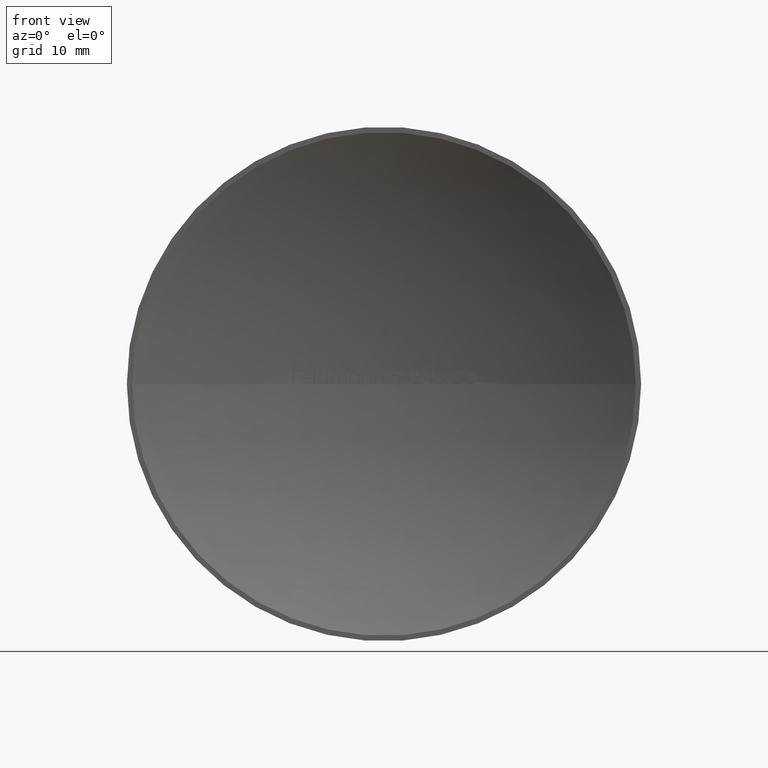
[diagram: clean part render]
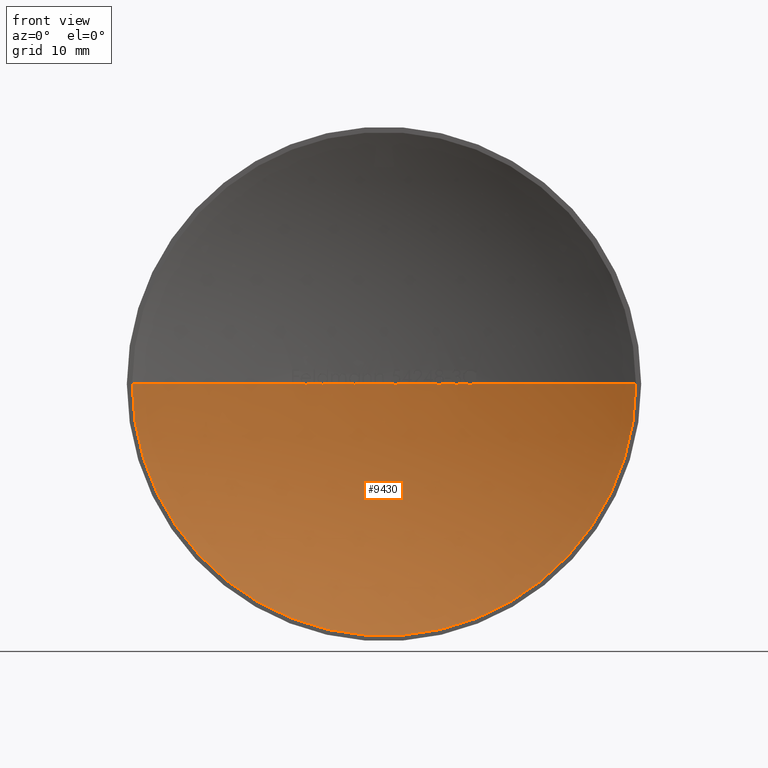
[diagram: same view with one face highlighted and labeled with its STEP entity id]
A machine part, front view. The second image highlights one B-rep face of the part: STEP entity #9430.
In plain terms, the highlighted spherical surface has radius 49.6019 mm.
Its self-contained STEP definition (entity closure, byte-faithful):
#43 = EDGE_LOOP ( 'NONE', ( #4882, #6689, #6753, #7775, #7887, #6994, #8675, #4696, #6246, #4340, #1738, #5373, #6885, #12651, #10324, #11909, #5054, #1391, #1188, #3706, #5491, #8390, #7410, #6536, #7382, #3102, #10715, #9566, #6255, #7719, #9083, #4099, #11258, #6299, #618, #1181, #11798, #9360, #1012, #5789, #11662, #6087, #9410, #5220, #8967, #204, #7799, #6098, #4261, #10463, #3948, #12587 ) ) ;
#68 = DIRECTION ( 'NONE',  ( -1.000000000000000000, 0.0000000000000000000, 1.224646799147353200E-016 ) ) ;
#93 = CARTESIAN_POINT ( 'NONE',  ( 6.724470571981925100, 5.542072289469087000, -0.02989199848110151900 ) ) ;
#204 = ORIENTED_EDGE ( 'NONE', *, *, #2615, .F. ) ;
#243 = EDGE_CURVE ( 'NONE', #12696, #9621, #11123, .T. ) ;
#246 = DIRECTION ( 'NONE',  ( 0.0000000000000000000, 0.0000000000000000000, -1.000000000000000000 ) ) ;
#251 = CIRCLE ( 'NONE', #7860, 49.60187499999996400 ) ;
#258 = CARTESIAN_POINT ( 'NONE',  ( -2.679013999319839200, 5.927605095194576500, -0.005824515598051869900 ) ) ;
#276 = CIRCLE ( 'NONE', #2003, 49.60187499999996400 ) ;
#308 = CARTESIAN_POINT ( 'NONE',  ( -2.736586320863180400, 5.924451665824027400, -0.01425418016871873000 ) ) ;
#336 = AXIS2_PLACEMENT_3D ( 'NONE', #4045, #12011, #3965 ) ;
#392 = CARTESIAN_POINT ( 'NONE',  ( 5.239364746979404700, 5.722505019383935300, -0.03047577454106548100 ) ) ;
#404 = EDGE_CURVE ( 'NONE', #5077, #698, #10890, .T. ) ;
#440 = CARTESIAN_POINT ( 'NONE',  ( 1.463868500272714700E-014, -43.60187499999997800, 0.0000000000000000000 ) ) ;
#452 = CARTESIAN_POINT ( 'NONE',  ( -8.522636217948703000, 5.262331485034955000, 4.035791619699531300E-015 ) ) ;
#454 = DIRECTION ( 'NONE',  ( 1.000000000000000000, 0.0000000000000000000, 0.0000000000000000000 ) ) ;
#485 = AXIS2_PLACEMENT_3D ( 'NONE', #4767, #9821, #3854 ) ;
#493 = VERTEX_POINT ( 'NONE', #7015 ) ;
#496 = CARTESIAN_POINT ( 'NONE',  ( 4.333400106837621600, 5.810346636247881900, -2.653442285131515300E-016 ) ) ;
#517 = VERTEX_POINT ( 'NONE', #12060 ) ;
#534 = CARTESIAN_POINT ( 'NONE',  ( 23.64788574058999200, -6.746207689312076300E-015, -2.896030757881546500E-015 ) ) ;
#557 = CARTESIAN_POINT ( 'NONE',  ( -4.859174679487162000, 5.761415256524173000, 4.030173027202267700E-015 ) ) ;
#588 = CARTESIAN_POINT ( 'NONE',  ( -7.439733434635988900, 5.438904936440341200, -0.01015934223820221300 ) ) ;
#597 = DIRECTION ( 'NONE',  ( -1.224646799147353200E-016, 8.963609366158087900E-031, -1.000000000000000000 ) ) ;
#618 = ORIENTED_EDGE ( 'NONE', *, *, #7739, .F. ) ;
#681 = CARTESIAN_POINT ( 'NONE',  ( 1.463868500272714700E-014, -43.60187499999997800, 0.0000000000000000000 ) ) ;
#698 = VERTEX_POINT ( 'NONE', #12463 ) ;
#705 = CARTESIAN_POINT ( 'NONE',  ( 1.463868500272714700E-014, -43.60187499999997800, 0.0000000000000000000 ) ) ;
#721 = CARTESIAN_POINT ( 'NONE',  ( -4.316439636752117600, 5.811831118625617500, 0.0000000000000000000 ) ) ;
#740 = DIRECTION ( 'NONE',  ( 0.0000000000000000000, -0.0000000000000000000, 1.000000000000000000 ) ) ;
#758 = CARTESIAN_POINT ( 'NONE',  ( 7.890751008122761000, 5.368340378807928900, 8.488721013175519200E-006 ) ) ;
#789 = EDGE_CURVE ( 'NONE', #862, #2011, #10863, .T. ) ;
#803 = DIRECTION ( 'NONE',  ( 0.0000000000000000000, -0.0000000000000000000, 1.000000000000000000 ) ) ;
#828 = VERTEX_POINT ( 'NONE', #2859 ) ;
#862 = VERTEX_POINT ( 'NONE', #721 ) ;
#870 = DIRECTION ( 'NONE',  ( 1.000000000000000000, 0.0000000000000000000, 0.0000000000000000000 ) ) ;
#879 = AXIS2_PLACEMENT_3D ( 'NONE', #8531, #10613, #2759 ) ;
#901 = CARTESIAN_POINT ( 'NONE',  ( 8.047439446970134500, 5.342841764016999800, -0.03082473936812907300 ) ) ;
#903 = EDGE_CURVE ( 'NONE', #2683, #3437, #5432, .T. ) ;
#904 = CARTESIAN_POINT ( 'NONE',  ( 1.463868500272714700E-014, -43.60187499999997800, 0.0000000000000000000 ) ) ;
#924 = CIRCLE ( 'NONE', #12284, 49.60187499999996400 ) ;
#962 = AXIS2_PLACEMENT_3D ( 'NONE', #7790, #803, #1849 ) ;
#969 = EDGE_CURVE ( 'NONE', #9708, #8846, #9193, .T. ) ;
#1012 = ORIENTED_EDGE ( 'NONE', *, *, #5197, .T. ) ;
#1066 = CARTESIAN_POINT ( 'NONE',  ( 6.757305919028807400, 5.537569642268946900, -0.03308704159077371900 ) ) ;
#1069 = CARTESIAN_POINT ( 'NONE',  ( 6.979099033457370800, 5.506557747456005500, 8.694128491201976900E-007 ) ) ;
#1106 = CARTESIAN_POINT ( 'NONE',  ( 6.638200815725295600, 5.553807632864066000, -0.01192559025062179600 ) ) ;
#1136 = CIRCLE ( 'NONE', #5849, 49.60187499999996400 ) ;
#1138 = CARTESIAN_POINT ( 'NONE',  ( 8.173033871506362400, 5.322012882657517700, -0.03335405446022068200 ) ) ;
#1151 = CARTESIAN_POINT ( 'NONE',  ( 1.463868500272714700E-014, -43.60187499999997800, 0.0000000000000000000 ) ) ;
#1176 = DIRECTION ( 'NONE',  ( 0.0000000000000000000, -0.0000000000000000000, 1.000000000000000000 ) ) ;
#1181 = ORIENTED_EDGE ( 'NONE', *, *, #8282, .T. ) ;
#1185 = CARTESIAN_POINT ( 'NONE',  ( -2.656440696895848500, 5.928815642323424000, -2.249331870367865100E-006 ) ) ;
#1188 = ORIENTED_EDGE ( 'NONE', *, *, #789, .T. ) ;
#1223 = DIRECTION ( 'NONE',  ( 1.000000000000000000, 0.0000000000000000000, 0.0000000000000000000 ) ) ;
#1224 = DIRECTION ( 'NONE',  ( 1.000000000000000000, 0.0000000000000000000, 0.0000000000000000000 ) ) ;
#1232 = CARTESIAN_POINT ( 'NONE',  ( -2.701725019257574800, 5.926370810177097300, -0.01009319187048079000 ) ) ;
#1233 = CARTESIAN_POINT ( 'NONE',  ( 1.014728200627871300, 5.989612439659318900, -0.03003821068411627300 ) ) ;
#1306 = B_SPLINE_CURVE_WITH_KNOTS ( 'NONE', 3,
 ( #11323, #5485, #4391, #10468, #5351, #8393, #7401, #4516 ),
 .UNSPECIFIED., .F., .F.,
 ( 4, 2, 2, 4 ),
 ( 0.6911621596050899800, 0.8455810798025421600, 0.9227905399012710200, 1.000000000000000000 ),
 .UNSPECIFIED. ) ;
#1310 = EDGE_CURVE ( 'NONE', #8095, #3511, #6984, .T. ) ;
#1359 = B_SPLINE_CURVE_WITH_KNOTS ( 'NONE', 3,
 ( #3242, #6174, #6216, #1233, #5235, #7245, #10233, #2459 ),
 .UNSPECIFIED., .F., .F.,
 ( 4, 2, 2, 4 ),
 ( 0.0000000000000000000, 0.07081696981279699000, 0.1416339396255939800, 0.2832678792511879600 ),
 .UNSPECIFIED. ) ;
#1379 = CIRCLE ( 'NONE', #336, 49.60187499999996400 ) ;
#1385 = CARTESIAN_POINT ( 'NONE',  ( 1.463868500272714700E-014, -43.60187499999997800, 0.0000000000000000000 ) ) ;
#1391 = ORIENTED_EDGE ( 'NONE', *, *, #4037, .T. ) ;
#1403 = AXIS2_PLACEMENT_3D ( 'NONE', #6642, #7586, #7633 ) ;
#1414 = AXIS2_PLACEMENT_3D ( 'NONE', #4738, #10641, #10558 ) ;
#1454 = CIRCLE ( 'NONE', #1414, 49.60187499999996400 ) ;
#1485 = CARTESIAN_POINT ( 'NONE',  ( -7.480813466297853200, 5.432637344131030100, -7.150046335276204300E-007 ) ) ;
#1505 = DIRECTION ( 'NONE',  ( 0.0000000000000000000, 0.0000000000000000000, 1.000000000000000000 ) ) ;
#1538 = CARTESIAN_POINT ( 'NONE',  ( -0.8904246794871655300, 5.992007157034080900, 0.0000000000000000000 ) ) ;
#1555 = EDGE_CURVE ( 'NONE', #12228, #12696, #1306, .T. ) ;
#1580 = EDGE_CURVE ( 'NONE', #7989, #8953, #9747, .T. ) ;
#1660 = VERTEX_POINT ( 'NONE', #758 ) ;
#1675 = VERTEX_POINT ( 'NONE', #8766 ) ;
#1738 = ORIENTED_EDGE ( 'NONE', *, *, #7598, .T. ) ;
#1771 = AXIS2_PLACEMENT_3D ( 'NONE', #7412, #3412, #8444 ) ;
#1810 = AXIS2_PLACEMENT_3D ( 'NONE', #4264, #10297, #6276 ) ;
#1836 = EDGE_CURVE ( 'NONE', #3693, #3677, #12895, .T. ) ;
#1849 = DIRECTION ( 'NONE',  ( 1.000000000000000000, 0.0000000000000000000, 0.0000000000000000000 ) ) ;
#1864 = CIRCLE ( 'NONE', #5110, 49.60187499999996400 ) ;
#1893 = CARTESIAN_POINT ( 'NONE',  ( 6.609443779147066600, 5.557673972055128300, -1.084902430274066100E-005 ) ) ;
#1937 = DIRECTION ( 'NONE',  ( 0.0000000000000000000, 0.0000000000000000000, 1.000000000000000000 ) ) ;
#1994 = CARTESIAN_POINT ( 'NONE',  ( 1.231760208460105100, 5.984712228362619500, -0.01179774255529475500 ) ) ;
#2003 = AXIS2_PLACEMENT_3D ( 'NONE', #6562, #740, #9611 ) ;
#2011 = VERTEX_POINT ( 'NONE', #557 ) ;
#2036 = DIRECTION ( 'NONE',  ( 0.0000000000000000000, -0.0000000000000000000, 1.000000000000000000 ) ) ;
#2046 = EDGE_CURVE ( 'NONE', #11733, #10739, #11665, .T. ) ;
#2051 = EDGE_CURVE ( 'NONE', #8095, #12629, #9444, .T. ) ;
#2079 = CARTESIAN_POINT ( 'NONE',  ( -5.624523918050308600, 5.680076294199516000, -2.105333533375243200E-006 ) ) ;
#2142 = FACE_OUTER_BOUND ( 'NONE', #43, .T. ) ;
#2182 = AXIS2_PLACEMENT_3D ( 'NONE', #1385, #4256, #9279 ) ;
#2192 = CARTESIAN_POINT ( 'NONE',  ( 8.133605435363266500, 5.328578865739591400, -0.03392094017094016800 ) ) ;
#2202 = DIRECTION ( 'NONE',  ( 1.000000000000000000, 0.0000000000000000000, 0.0000000000000000000 ) ) ;
#2206 = CARTESIAN_POINT ( 'NONE',  ( 6.792933276575873000, 5.532643521966100800, -0.03392094017094009200 ) ) ;
#2211 = CARTESIAN_POINT ( 'NONE',  ( -7.280943345265357400, 5.462713117154265800, -0.01445704279385973300 ) ) ;
#2244 = CARTESIAN_POINT ( 'NONE',  ( -2.399906517094001500, 5.941908184420151800, 1.469518917206251000E-016 ) ) ;
#2301 = CARTESIAN_POINT ( 'NONE',  ( -7.222501083491901700, 5.471356722514634900, -0.006265846222220670100 ) ) ;
#2315 = CARTESIAN_POINT ( 'NONE',  ( -1.161792200854684600, 5.986392184865983300, 4.048540845547321900E-015 ) ) ;
#2351 = CARTESIAN_POINT ( 'NONE',  ( -2.843430436441433800, 5.918454559148671900, -0.01563942601961633800 ) ) ;
#2363 = CARTESIAN_POINT ( 'NONE',  ( 1.463868500272714700E-014, -43.60187499999997800, 0.0000000000000000000 ) ) ;
#2400 = VERTEX_POINT ( 'NONE', #496 ) ;
#2429 = CARTESIAN_POINT ( 'NONE',  ( 5.003407304901744900, 5.747014680578828900, -0.01252337214899423000 ) ) ;
#2431 = DIRECTION ( 'NONE',  ( 0.0000000000000000000, -0.0000000000000000000, 1.000000000000000000 ) ) ;
#2459 = CARTESIAN_POINT ( 'NONE',  ( 0.9062174182418493200, 5.991720991167619000, 9.656847801228648600E-006 ) ) ;
#2540 = B_SPLINE_CURVE_WITH_KNOTS ( 'NONE', 3,
 ( #1185, #258, #1232, #308, #8284, #7199, #10094, #8146 ),
 .UNSPECIFIED., .F., .F.,
 ( 4, 2, 2, 4 ),
 ( 0.6915284038964573100, 0.8457642019482302100, 0.9228821009741150500, 1.000000000000000000 ),
 .UNSPECIFIED. ) ;
#2570 = CARTESIAN_POINT ( 'NONE',  ( -7.340968466212588700, 5.453765836056258600, -0.01696047008547008400 ) ) ;
#2615 = EDGE_CURVE ( 'NONE', #5740, #2400, #6512, .T. ) ;
#2683 = VERTEX_POINT ( 'NONE', #8550 ) ;
#2687 = DIRECTION ( 'NONE',  ( 0.0000000000000000000, -0.0000000000000000000, 1.000000000000000000 ) ) ;
#2713 = EDGE_CURVE ( 'NONE', #11099, #3511, #10532, .T. ) ;
#2759 = DIRECTION ( 'NONE',  ( -1.000000000000000000, 0.0000000000000000000, 1.224646799147353200E-016 ) ) ;
#2789 = CARTESIAN_POINT ( 'NONE',  ( -4.977897970085453300, 5.749584302791062900, 0.0000000000000000000 ) ) ;
#2808 = CIRCLE ( 'NONE', #7610, 49.60187499999996400 ) ;
#2859 = CARTESIAN_POINT ( 'NONE',  ( 8.366408603394225100, 5.289322578243374400, -3.990226315477980000E-006 ) ) ;
#2866 = CARTESIAN_POINT ( 'NONE',  ( 1.463868500272714700E-014, -43.60187499999997800, 0.0000000000000000000 ) ) ;
#2919 = CARTESIAN_POINT ( 'NONE',  ( 6.979099033457370800, 5.506557747456005500, 8.694128491201976900E-007 ) ) ;
#2954 = DIRECTION ( 'NONE',  ( 0.0000000000000000000, -0.0000000000000000000, 1.000000000000000000 ) ) ;
#2991 = AXIS2_PLACEMENT_3D ( 'NONE', #11888, #1505, #5620 ) ;
#3091 = CARTESIAN_POINT ( 'NONE',  ( 1.463868500272714700E-014, -43.60187499999997800, 0.0000000000000000000 ) ) ;
#3102 = ORIENTED_EDGE ( 'NONE', *, *, #6494, .T. ) ;
#3130 = CARTESIAN_POINT ( 'NONE',  ( 6.917637434057675200, 5.515258725799571800, -0.02083415864269196100 ) ) ;
#3198 = CIRCLE ( 'NONE', #5237, 49.60187499999996400 ) ;
#3213 = CARTESIAN_POINT ( 'NONE',  ( 6.860591333511716300, 5.523247323587402700, -0.02985447888303161000 ) ) ;
#3242 = CARTESIAN_POINT ( 'NONE',  ( 1.073544754941252500, 5.988369550159050400, -0.03392094017094011300 ) ) ;
#3267 = CARTESIAN_POINT ( 'NONE',  ( -2.928456740261676600, 5.913477493067604000, 2.342369519674697600E-006 ) ) ;
#3310 = CARTESIAN_POINT ( 'NONE',  ( -2.888018540663473300, 5.915869228112190300, -0.01015410058305177500 ) ) ;
#3344 = CIRCLE ( 'NONE', #6096, 49.60187499999996400 ) ;
#3406 = SPHERICAL_SURFACE ( 'NONE', #12861, 49.60187499999996400 ) ;
#3412 = DIRECTION ( 'NONE',  ( 0.0000000000000000000, -0.0000000000000000000, 1.000000000000000000 ) ) ;
#3423 = AXIS2_PLACEMENT_3D ( 'NONE', #681, #6836, #7752 ) ;
#3432 = VERTEX_POINT ( 'NONE', #12616 ) ;
#3437 = VERTEX_POINT ( 'NONE', #4301 ) ;
#3465 = DIRECTION ( 'NONE',  ( 0.0000000000000000000, -0.0000000000000000000, 1.000000000000000000 ) ) ;
#3469 = CARTESIAN_POINT ( 'NONE',  ( 5.171088324652791900, 5.729704119506004100, -0.03392094017094016800 ) ) ;
#3500 = CARTESIAN_POINT ( 'NONE',  ( -5.896502342422787800, 5.648274755274108800, 3.108838088003490800E-007 ) ) ;
#3511 = VERTEX_POINT ( 'NONE', #4766 ) ;
#3530 = DIRECTION ( 'NONE',  ( 1.000000000000000000, 0.0000000000000000000, 0.0000000000000000000 ) ) ;
#3595 = VERTEX_POINT ( 'NONE', #8833 ) ;
#3629 = CARTESIAN_POINT ( 'NONE',  ( -5.856419506571237200, 5.653073824963065000, -0.01006037239967079600 ) ) ;
#3651 = AXIS2_PLACEMENT_3D ( 'NONE', #11900, #10965, #3969 ) ;
#3677 = VERTEX_POINT ( 'NONE', #8997 ) ;
#3690 = EDGE_CURVE ( 'NONE', #11099, #517, #9787, .T. ) ;
#3693 = VERTEX_POINT ( 'NONE', #6069 ) ;
#3706 = ORIENTED_EDGE ( 'NONE', *, *, #5229, .T. ) ;
#3741 = CIRCLE ( 'NONE', #10433, 49.60187499999996400 ) ;
#3744 = CARTESIAN_POINT ( 'NONE',  ( 1.463868500272714700E-014, -43.60187499999997800, 0.0000000000000000000 ) ) ;
#3781 = DIRECTION ( 'NONE',  ( 1.000000000000000000, 0.0000000000000000000, 0.0000000000000000000 ) ) ;
#3812 = CIRCLE ( 'NONE', #2991, 49.60187499999996400 ) ;
#3836 = B_SPLINE_CURVE_WITH_KNOTS ( 'NONE', 3,
 ( #11316, #10250, #5344, #11366, #2429, #8342 ),
 .UNSPECIFIED., .F., .F.,
 ( 4, 2, 4 ),
 ( 0.0000000000000000000, 0.1492345756374781300, 0.2984691512749562700 ),
 .UNSPECIFIED. ) ;
#3854 = DIRECTION ( 'NONE',  ( 1.000000000000000000, 0.0000000000000000000, 0.0000000000000000000 ) ) ;
#3948 = ORIENTED_EDGE ( 'NONE', *, *, #3690, .T. ) ;
#3965 = DIRECTION ( 'NONE',  ( 1.000000000000000000, 0.0000000000000000000, 0.0000000000000000000 ) ) ;
#3969 = DIRECTION ( 'NONE',  ( 1.000000000000000000, 0.0000000000000000000, 0.0000000000000000000 ) ) ;
#3989 = AXIS2_PLACEMENT_3D ( 'NONE', #5226, #1176, #1223 ) ;
#4010 = VERTEX_POINT ( 'NONE', #7269 ) ;
#4037 = EDGE_CURVE ( 'NONE', #493, #862, #3198, .T. ) ;
#4040 = CARTESIAN_POINT ( 'NONE',  ( 6.792933276575873000, 5.532643521966100800, -0.03392094017094009200 ) ) ;
#4045 = CARTESIAN_POINT ( 'NONE',  ( 1.463868500272714700E-014, -43.60187499999997800, 0.0000000000000000000 ) ) ;
#4066 = B_SPLINE_CURVE_WITH_KNOTS ( 'NONE', 3,
 ( #5977, #2301, #8125, #2211, #11234, #10156, #12147, #7265, #5259, #4216 ),
 .UNSPECIFIED., .F., .F.,
 ( 4, 2, 2, 2, 4 ),
 ( 0.7363279762985935900, 0.8681639881492946300, 0.9340819940746454300, 0.9670409970373227100, 1.000000000000000000 ),
 .UNSPECIFIED. ) ;
#4067 = VERTEX_POINT ( 'NONE', #11849 ) ;
#4099 = ORIENTED_EDGE ( 'NONE', *, *, #5566, .T. ) ;
#4159 = DIRECTION ( 'NONE',  ( -1.000000000000000000, 0.0000000000000000000, 1.224646799147353200E-016 ) ) ;
#4216 = CARTESIAN_POINT ( 'NONE',  ( -7.340968466212588700, 5.453765836056258600, -0.01696047008547008400 ) ) ;
#4239 = DIRECTION ( 'NONE',  ( 0.0000000000000000000, 0.0000000000000000000, 1.000000000000000000 ) ) ;
#4256 = DIRECTION ( 'NONE',  ( 0.0000000000000000000, -0.0000000000000000000, 1.000000000000000000 ) ) ;
#4261 = ORIENTED_EDGE ( 'NONE', *, *, #1310, .T. ) ;
#4264 = CARTESIAN_POINT ( 'NONE',  ( -4.391605500818018500E-014, 1.665334536937734800E-013, 0.0000000000000000000 ) ) ;
#4285 = CARTESIAN_POINT ( 'NONE',  ( 1.463868500272714700E-014, -43.60187499999997800, 0.0000000000000000000 ) ) ;
#4301 = CARTESIAN_POINT ( 'NONE',  ( -7.198465829507335400, 5.474881983893638400, -3.500369108205801200E-006 ) ) ;
#4307 = DIRECTION ( 'NONE',  ( 1.000000000000000000, 0.0000000000000000000, 0.0000000000000000000 ) ) ;
#4340 = ORIENTED_EDGE ( 'NONE', *, *, #9033, .T. ) ;
#4371 = CARTESIAN_POINT ( 'NONE',  ( 1.463868500272714700E-014, -43.60187499999997800, 0.0000000000000000000 ) ) ;
#4391 = CARTESIAN_POINT ( 'NONE',  ( -5.669928983094124900, 5.674877720789437400, -0.01010834121034870500 ) ) ;
#4413 = DIRECTION ( 'NONE',  ( 0.0000000000000000000, -0.0000000000000000000, 1.000000000000000000 ) ) ;
#4423 = CARTESIAN_POINT ( 'NONE',  ( -1.280515491452973700, 5.983468435250827600, 7.840895989334703200E-017 ) ) ;
#4425 = EDGE_CURVE ( 'NONE', #5569, #2400, #7865, .T. ) ;
#4454 = DIRECTION ( 'NONE',  ( 1.000000000000000000, 0.0000000000000000000, 0.0000000000000000000 ) ) ;
#4462 = B_SPLINE_CURVE_WITH_KNOTS ( 'NONE', 3,
 ( #8325, #11435, #9479, #5423, #392, #12392, #11299, #5467, #7423, #12434 ),
 .UNSPECIFIED., .F., .F.,
 ( 4, 2, 2, 2, 4 ),
 ( 0.4911366497956574700, 0.7455683248978286500, 0.8727841624489143200, 0.9363920812244570500, 1.000000000000000000 ),
 .UNSPECIFIED. ) ;
#4470 = CARTESIAN_POINT ( 'NONE',  ( 1.463868500272714700E-014, -43.60187499999997800, 0.0000000000000000000 ) ) ;
#4494 = VERTEX_POINT ( 'NONE', #4423 ) ;
#4506 = CIRCLE ( 'NONE', #2182, 49.60187499999996400 ) ;
#4516 = CARTESIAN_POINT ( 'NONE',  ( -5.762849726228616900, 5.664089710852708800, -0.01696047008547017800 ) ) ;
#4545 = DIRECTION ( 'NONE',  ( -1.000000000000000000, 0.0000000000000000000, 1.224646799147353200E-016 ) ) ;
#4546 = EDGE_CURVE ( 'NONE', #5010, #4494, #8158, .T. ) ;
#4609 = CARTESIAN_POINT ( 'NONE',  ( 1.463868500272714700E-014, -43.60187499999997800, 0.0000000000000000000 ) ) ;
#4617 = CARTESIAN_POINT ( 'NONE',  ( -5.762849726228616900, 5.664089710852708800, -0.01696047008547017800 ) ) ;
#4623 = CARTESIAN_POINT ( 'NONE',  ( 0.9062174182418493200, 5.991720991167619000, 9.656847801228648600E-006 ) ) ;
#4653 = DIRECTION ( 'NONE',  ( 0.0000000000000000000, 0.0000000000000000000, 1.000000000000000000 ) ) ;
#4696 = ORIENTED_EDGE ( 'NONE', *, *, #7811, .T. ) ;
#4707 = EDGE_CURVE ( 'NONE', #10236, #2683, #3812, .T. ) ;
#4732 = VERTEX_POINT ( 'NONE', #10054 ) ;
#4738 = CARTESIAN_POINT ( 'NONE',  ( 1.463868500272714700E-014, -43.60187499999997800, 0.0000000000000000000 ) ) ;
#4766 = CARTESIAN_POINT ( 'NONE',  ( 2.298143696581214100, 5.946732841850486100, 0.0000000000000000000 ) ) ;
#4767 = CARTESIAN_POINT ( 'NONE',  ( 1.463868500272714700E-014, -43.60187499999997800, 0.0000000000000000000 ) ) ;
#4821 = DIRECTION ( 'NONE',  ( 1.000000000000000000, 0.0000000000000000000, 0.0000000000000000000 ) ) ;
#4822 = CARTESIAN_POINT ( 'NONE',  ( 1.463868500272714700E-014, -43.60187499999997800, 0.0000000000000000000 ) ) ;
#4843 = AXIS2_PLACEMENT_3D ( 'NONE', #2866, #11004, #6019 ) ;
#4853 = EDGE_CURVE ( 'NONE', #517, #10739, #1359, .T. ) ;
#4882 = ORIENTED_EDGE ( 'NONE', *, *, #2046, .F. ) ;
#4907 = EDGE_CURVE ( 'NONE', #10369, #5077, #5196, .T. ) ;
#4910 = CARTESIAN_POINT ( 'NONE',  ( 3.587139423076938900, 5.870121465425072800, 4.039048141254132200E-015 ) ) ;
#4995 = DIRECTION ( 'NONE',  ( 1.000000000000000000, 0.0000000000000000000, 0.0000000000000000000 ) ) ;
#5010 = VERTEX_POINT ( 'NONE', #2315 ) ;
#5054 = ORIENTED_EDGE ( 'NONE', *, *, #7974, .T. ) ;
#5077 = VERTEX_POINT ( 'NONE', #6505 ) ;
#5079 = EDGE_CURVE ( 'NONE', #5740, #12629, #9402, .T. ) ;
#5109 = VERTEX_POINT ( 'NONE', #11642 ) ;
#5110 = AXIS2_PLACEMENT_3D ( 'NONE', #5914, #8759, #12863 ) ;
#5183 = CIRCLE ( 'NONE', #7000, 49.60187499999996400 ) ;
#5186 = CARTESIAN_POINT ( 'NONE',  ( 8.366408603394225100, 5.289322578243374400, -3.990226315477980000E-006 ) ) ;
#5196 = CIRCLE ( 'NONE', #12356, 49.60187499999996400 ) ;
#5197 = EDGE_CURVE ( 'NONE', #10796, #9708, #11005, .T. ) ;
#5220 = ORIENTED_EDGE ( 'NONE', *, *, #11511, .F. ) ;
#5226 = CARTESIAN_POINT ( 'NONE',  ( 1.463868500272714700E-014, -43.60187499999997800, 0.0000000000000000000 ) ) ;
#5229 = EDGE_CURVE ( 'NONE', #2011, #10369, #5183, .T. ) ;
#5235 = CARTESIAN_POINT ( 'NONE',  ( 1.002372793432185300, 5.989864947295087600, -0.02840824834680725700 ) ) ;
#5237 = AXIS2_PLACEMENT_3D ( 'NONE', #10603, #4653, #3530 ) ;
#5255 = B_SPLINE_CURVE_WITH_KNOTS ( 'NONE', 3,
 ( #5186, #6091, #11077, #12169, #7200, #1138, #12081, #2192 ),
 .UNSPECIFIED., .F., .F.,
 ( 4, 2, 2, 4 ),
 ( 0.6447685644164737900, 0.8223842822082368900, 0.9111921411041183900, 1.000000000000000000 ),
 .UNSPECIFIED. ) ;
#5259 = CARTESIAN_POINT ( 'NONE',  ( -7.333115343795566500, 5.454941078705788400, -0.01679789877669494700 ) ) ;
#5286 = EDGE_CURVE ( 'NONE', #6184, #10109, #3836, .T. ) ;
#5289 = CARTESIAN_POINT ( 'NONE',  ( -5.762849726228616900, 5.664089710852708800, -0.01696047008547017800 ) ) ;
#5307 = VERTEX_POINT ( 'NONE', #452 ) ;
#5344 = CARTESIAN_POINT ( 'NONE',  ( 5.104071114146922400, 5.736697788178950000, -0.03103019351834402200 ) ) ;
#5351 = CARTESIAN_POINT ( 'NONE',  ( -5.713051824478059300, 5.669891126302184500, -0.01493659418292325000 ) ) ;
#5373 = ORIENTED_EDGE ( 'NONE', *, *, #10443, .T. ) ;
#5423 = CARTESIAN_POINT ( 'NONE',  ( 5.254557469372820800, 5.720889298634540800, -0.02886406570862337300 ) ) ;
#5432 = CIRCLE ( 'NONE', #6578, 49.60187499999996400 ) ;
#5467 = CARTESIAN_POINT ( 'NONE',  ( 5.190093097005140000, 5.727709380563880800, -0.03334966868240460400 ) ) ;
#5485 = CARTESIAN_POINT ( 'NONE',  ( -5.647147844678487500, 5.677494346815874100, -0.005837025963735514200 ) ) ;
#5491 = ORIENTED_EDGE ( 'NONE', *, *, #4907, .T. ) ;
#5517 = DIRECTION ( 'NONE',  ( -1.224646799147353200E-016, 8.963609366158087900E-031, -1.000000000000000000 ) ) ;
#5554 = CARTESIAN_POINT ( 'NONE',  ( -2.281183226495711000, 5.947516586605562600, 4.045366920415684200E-015 ) ) ;
#5566 = EDGE_CURVE ( 'NONE', #5307, #8116, #1136, .T. ) ;
#5569 = VERTEX_POINT ( 'NONE', #11110 ) ;
#5620 = DIRECTION ( 'NONE',  ( 1.000000000000000000, 0.0000000000000000000, 0.0000000000000000000 ) ) ;
#5647 = CARTESIAN_POINT ( 'NONE',  ( 8.088904337090882600, 5.336009650053317600, -0.03360982927504728400 ) ) ;
#5708 = DIRECTION ( 'NONE',  ( -1.224646799147353200E-016, 8.963609366158087900E-031, -1.000000000000000000 ) ) ;
#5719 = EDGE_CURVE ( 'NONE', #3432, #8846, #8764, .T. ) ;
#5740 = VERTEX_POINT ( 'NONE', #4910 ) ;
#5784 = EDGE_CURVE ( 'NONE', #8116, #1675, #3344, .T. ) ;
#5789 = ORIENTED_EDGE ( 'NONE', *, *, #969, .T. ) ;
#5838 = DIRECTION ( 'NONE',  ( 1.000000000000000000, 0.0000000000000000000, 0.0000000000000000000 ) ) ;
#5849 = AXIS2_PLACEMENT_3D ( 'NONE', #4285, #4239, #1224 ) ;
#5868 = EDGE_CURVE ( 'NONE', #3437, #5109, #4066, .T. ) ;
#5896 = CARTESIAN_POINT ( 'NONE',  ( 1.261122010678652000, 5.983965395448918500, -9.186799020903663800E-007 ) ) ;
#5914 = CARTESIAN_POINT ( 'NONE',  ( 1.463868500272714700E-014, -43.60187499999997800, 0.0000000000000000000 ) ) ;
#5977 = CARTESIAN_POINT ( 'NONE',  ( -7.198465829507335400, 5.474881983893638400, -3.500369108205801200E-006 ) ) ;
#6019 = DIRECTION ( 'NONE',  ( 1.000000000000000000, 0.0000000000000000000, 0.0000000000000000000 ) ) ;
#6063 = CARTESIAN_POINT ( 'NONE',  ( 6.792933276575873000, 5.532643521966100800, -0.03392094017094009200 ) ) ;
#6069 = CARTESIAN_POINT ( 'NONE',  ( -0.1611244658119513100, 5.999738304630929200, 9.866028066069428800E-018 ) ) ;
#6072 = DIRECTION ( 'NONE',  ( -1.224646799147353200E-016, 8.963609366158087900E-031, -1.000000000000000000 ) ) ;
#6087 = ORIENTED_EDGE ( 'NONE', *, *, #7983, .T. ) ;
#6091 = CARTESIAN_POINT ( 'NONE',  ( 8.329078863622168400, 5.295710656376451600, -0.01173193813247311500 ) ) ;
#6096 = AXIS2_PLACEMENT_3D ( 'NONE', #3091, #2036, #4995 ) ;
#6098 = ORIENTED_EDGE ( 'NONE', *, *, #2051, .F. ) ;
#6127 = AXIS2_PLACEMENT_3D ( 'NONE', #4470, #2431, #454 ) ;
#6144 = CARTESIAN_POINT ( 'NONE',  ( 6.812311114128980300, 5.529964912178725100, -0.03332675464302576500 ) ) ;
#6174 = CARTESIAN_POINT ( 'NONE',  ( 1.057705513219158400, 5.988712658125749000, -0.03360629374021544700 ) ) ;
#6184 = VERTEX_POINT ( 'NONE', #3469 ) ;
#6216 = CARTESIAN_POINT ( 'NONE',  ( 1.042775908565273000, 5.989028890121286300, -0.03273924873836976000 ) ) ;
#6221 = CIRCLE ( 'NONE', #7525, 49.60187499999996400 ) ;
#6223 = AXIS2_PLACEMENT_3D ( 'NONE', #7872, #2954, #12097 ) ;
#6246 = ORIENTED_EDGE ( 'NONE', *, *, #8699, .T. ) ;
#6255 = ORIENTED_EDGE ( 'NONE', *, *, #5868, .T. ) ;
#6276 = DIRECTION ( 'NONE',  ( 1.000000000000000000, -7.319342501363578300E-015, 0.0000000000000000000 ) ) ;
#6281 = AXIS2_PLACEMENT_3D ( 'NONE', #4371, #4413, #11476 ) ;
#6299 = ORIENTED_EDGE ( 'NONE', *, *, #6889, .T. ) ;
#6398 = CARTESIAN_POINT ( 'NONE',  ( 1.463868500272714700E-014, -43.60187499999997800, 0.0000000000000000000 ) ) ;
#6428 = CARTESIAN_POINT ( 'NONE',  ( -0.04240117521366269100, 5.999981877096487000, 4.049650350420087100E-015 ) ) ;
#6494 = EDGE_CURVE ( 'NONE', #9621, #10236, #1454, .T. ) ;
#6505 = CARTESIAN_POINT ( 'NONE',  ( -5.249265491452973700, 5.721458375957714900, 4.026910822809625600E-015 ) ) ;
#6512 = CIRCLE ( 'NONE', #7821, 49.60187499999996400 ) ;
#6536 = ORIENTED_EDGE ( 'NONE', *, *, #1555, .T. ) ;
#6562 = CARTESIAN_POINT ( 'NONE',  ( 1.463868500272714700E-014, -43.60187499999997800, 0.0000000000000000000 ) ) ;
#6578 = AXIS2_PLACEMENT_3D ( 'NONE', #12831, #7703, #4821 ) ;
#6590 = CARTESIAN_POINT ( 'NONE',  ( -7.393110645712903700, 5.445963401016125100, -0.01574325759827940900 ) ) ;
#6616 = CARTESIAN_POINT ( 'NONE',  ( 1.463868500272714700E-014, -43.60187499999997800, 0.0000000000000000000 ) ) ;
#6642 = CARTESIAN_POINT ( 'NONE',  ( 1.463868500272714700E-014, -43.60187499999997800, 0.0000000000000000000 ) ) ;
#6689 = ORIENTED_EDGE ( 'NONE', *, *, #12184, .T. ) ;
#6715 = DIRECTION ( 'NONE',  ( 0.0000000000000000000, 0.0000000000000000000, 1.000000000000000000 ) ) ;
#6753 = ORIENTED_EDGE ( 'NONE', *, *, #9585, .T. ) ;
#6802 = CARTESIAN_POINT ( 'NONE',  ( 7.970975506823310600, 5.355357963710218000, -0.02051666842583487300 ) ) ;
#6836 = DIRECTION ( 'NONE',  ( 0.0000000000000000000, 0.0000000000000000000, 1.000000000000000000 ) ) ;
#6885 = ORIENTED_EDGE ( 'NONE', *, *, #12566, .T. ) ;
#6889 = EDGE_CURVE ( 'NONE', #1675, #6906, #9629, .T. ) ;
#6906 = VERTEX_POINT ( 'NONE', #534 ) ;
#6920 = CARTESIAN_POINT ( 'NONE',  ( -5.896502342422787800, 5.648274755274108800, 3.108838088003490800E-007 ) ) ;
#6939 = VERTEX_POINT ( 'NONE', #3267 ) ;
#6957 = DIRECTION ( 'NONE',  ( 0.0000000000000000000, -0.0000000000000000000, 1.000000000000000000 ) ) ;
#6975 = CARTESIAN_POINT ( 'NONE',  ( 1.463868500272714700E-014, -43.60187499999997800, 0.0000000000000000000 ) ) ;
#6984 = CIRCLE ( 'NONE', #3651, 49.60187499999996400 ) ;
#6994 = ORIENTED_EDGE ( 'NONE', *, *, #7687, .T. ) ;
#7000 = AXIS2_PLACEMENT_3D ( 'NONE', #10379, #7305, #4307 ) ;
#7015 = CARTESIAN_POINT ( 'NONE',  ( -4.197716346153828000, 5.822058281284444800, 4.035124112946487000E-015 ) ) ;
#7046 = VERTEX_POINT ( 'NONE', #12341 ) ;
#7082 = CARTESIAN_POINT ( 'NONE',  ( 6.664368880303701600, 5.550264128930663800, -0.01896503685091043300 ) ) ;
#7138 = CARTESIAN_POINT ( 'NONE',  ( -2.794767461271352900, 5.921200335599836600, -0.01696047008547016400 ) ) ;
#7188 = CARTESIAN_POINT ( 'NONE',  ( 3.746545579650276100E-013, 5.999999999999984900, 0.0000000000000000000 ) ) ;
#7199 = CARTESIAN_POINT ( 'NONE',  ( -2.766480542923019000, 5.922790022088022100, -0.01612941240906061800 ) ) ;
#7200 = CARTESIAN_POINT ( 'NONE',  ( 8.212267228082483300, 5.315444196352866700, -0.03082741105378688400 ) ) ;
#7239 = EDGE_CURVE ( 'NONE', #10796, #1660, #924, .T. ) ;
#7245 = CARTESIAN_POINT ( 'NONE',  ( 0.9580999908842831000, 5.990750972601477800, -0.01999962929081233400 ) ) ;
#7262 = VERTEX_POINT ( 'NONE', #10038 ) ;
#7265 = CARTESIAN_POINT ( 'NONE',  ( -7.326228143708585900, 5.455969877421930300, -0.01662994084089132100 ) ) ;
#7269 = CARTESIAN_POINT ( 'NONE',  ( -2.656440696895848500, 5.928815642323424000, -2.249331870367865100E-006 ) ) ;
#7305 = DIRECTION ( 'NONE',  ( 0.0000000000000000000, 0.0000000000000000000, 1.000000000000000000 ) ) ;
#7382 = ORIENTED_EDGE ( 'NONE', *, *, #243, .T. ) ;
#7401 = CARTESIAN_POINT ( 'NONE',  ( -5.747603203300467800, 5.665873283250281400, -0.01660704146852294200 ) ) ;
#7410 = ORIENTED_EDGE ( 'NONE', *, *, #11887, .T. ) ;
#7412 = CARTESIAN_POINT ( 'NONE',  ( 1.463868500272714700E-014, -43.60187499999997800, 0.0000000000000000000 ) ) ;
#7423 = CARTESIAN_POINT ( 'NONE',  ( 5.180983347162302800, 5.728667071479370600, -0.03366096522774098700 ) ) ;
#7443 = EDGE_CURVE ( 'NONE', #5109, #3595, #10674, .T. ) ;
#7477 = CIRCLE ( 'NONE', #11870, 49.60187499999996400 ) ;
#7495 = B_SPLINE_CURVE_WITH_KNOTS ( 'NONE', 3,
 ( #7138, #2351, #3310, #11237 ),
 .UNSPECIFIED., .F., .F.,
 ( 4, 4 ),
 ( 0.0000000000000000000, 0.1700438045253399900 ),
 .UNSPECIFIED. ) ;
#7525 = AXIS2_PLACEMENT_3D ( 'NONE', #4609, #6715, #11641 ) ;
#7553 = CARTESIAN_POINT ( 'NONE',  ( 1.463868500272714700E-014, -43.60187499999997800, 0.0000000000000000000 ) ) ;
#7586 = DIRECTION ( 'NONE',  ( 0.0000000000000000000, 0.0000000000000000000, 1.000000000000000000 ) ) ;
#7598 = EDGE_CURVE ( 'NONE', #8015, #7771, #3741, .T. ) ;
#7610 = AXIS2_PLACEMENT_3D ( 'NONE', #1151, #9028, #4159 ) ;
#7633 = DIRECTION ( 'NONE',  ( 1.000000000000000000, 0.0000000000000000000, 0.0000000000000000000 ) ) ;
#7687 = EDGE_CURVE ( 'NONE', #8502, #5010, #7477, .T. ) ;
#7697 = DIRECTION ( 'NONE',  ( 0.0000000000000000000, 0.0000000000000000000, 1.000000000000000000 ) ) ;
#7703 = DIRECTION ( 'NONE',  ( 0.0000000000000000000, -0.0000000000000000000, 1.000000000000000000 ) ) ;
#7719 = ORIENTED_EDGE ( 'NONE', *, *, #7443, .T. ) ;
#7739 = EDGE_CURVE ( 'NONE', #828, #6906, #2808, .T. ) ;
#7752 = DIRECTION ( 'NONE',  ( 1.000000000000000000, 0.0000000000000000000, 0.0000000000000000000 ) ) ;
#7771 = VERTEX_POINT ( 'NONE', #2244 ) ;
#7775 = ORIENTED_EDGE ( 'NONE', *, *, #1836, .T. ) ;
#7783 = CIRCLE ( 'NONE', #6281, 49.60187499999996400 ) ;
#7790 = CARTESIAN_POINT ( 'NONE',  ( 1.463868500272714700E-014, -43.60187499999997800, 0.0000000000000000000 ) ) ;
#7799 = ORIENTED_EDGE ( 'NONE', *, *, #5079, .T. ) ;
#7811 = EDGE_CURVE ( 'NONE', #4494, #7262, #4506, .T. ) ;
#7821 = AXIS2_PLACEMENT_3D ( 'NONE', #6616, #5517, #4545 ) ;
#7860 = AXIS2_PLACEMENT_3D ( 'NONE', #7553, #2687, #870 ) ;
#7863 = CIRCLE ( 'NONE', #11644, 49.60187499999996400 ) ;
#7865 = CIRCLE ( 'NONE', #9888, 49.60187499999996400 ) ;
#7872 = CARTESIAN_POINT ( 'NONE',  ( 1.463868500272714700E-014, -43.60187499999997800, 0.0000000000000000000 ) ) ;
#7887 = ORIENTED_EDGE ( 'NONE', *, *, #9693, .T. ) ;
#7901 = CARTESIAN_POINT ( 'NONE',  ( -8.641359508546990800, 5.241475717980718800, 1.058261326242406900E-015 ) ) ;
#7914 = CARTESIAN_POINT ( 'NONE',  ( 1.463868500272714700E-014, -43.60187499999997800, 0.0000000000000000000 ) ) ;
#7974 = EDGE_CURVE ( 'NONE', #8953, #493, #7783, .T. ) ;
#7983 = EDGE_CURVE ( 'NONE', #3432, #6184, #4462, .T. ) ;
#7989 = VERTEX_POINT ( 'NONE', #12351 ) ;
#8015 = VERTEX_POINT ( 'NONE', #5554 ) ;
#8023 = EDGE_CURVE ( 'NONE', #6939, #7989, #276, .T. ) ;
#8063 = AXIS2_PLACEMENT_3D ( 'NONE', #8575, #597, #9603 ) ;
#8095 = VERTEX_POINT ( 'NONE', #12510 ) ;
#8116 = VERTEX_POINT ( 'NONE', #7901 ) ;
#8125 = CARTESIAN_POINT ( 'NONE',  ( -7.244993758769303400, 5.468039973482241600, -0.01038363754873643800 ) ) ;
#8146 = CARTESIAN_POINT ( 'NONE',  ( -2.794767461271352900, 5.921200335599836600, -0.01696047008547016400 ) ) ;
#8158 = CIRCLE ( 'NONE', #485, 49.60187499999996400 ) ;
#8194 = B_SPLINE_CURVE_WITH_KNOTS ( 'NONE', 3,
 ( #9472, #5647, #901, #6802, #11730, #8857 ),
 .UNSPECIFIED., .F., .F.,
 ( 4, 2, 4 ),
 ( 0.0000000000000000000, 0.2001037951367398400, 0.4002075902734796900 ),
 .UNSPECIFIED. ) ;
#8252 = CIRCLE ( 'NONE', #6223, 49.60187499999996400 ) ;
#8282 = EDGE_CURVE ( 'NONE', #828, #4067, #5255, .T. ) ;
#8284 = CARTESIAN_POINT ( 'NONE',  ( -2.744933362729493200, 5.923989334648829300, -0.01493460674896647700 ) ) ;
#8325 = CARTESIAN_POINT ( 'NONE',  ( 5.367091726301215900, 5.708776146125648800, 1.984043633951252700E-009 ) ) ;
#8342 = CARTESIAN_POINT ( 'NONE',  ( 4.972036635123359400, 5.750175124589536500, -1.030229982474400700E-005 ) ) ;
#8390 = ORIENTED_EDGE ( 'NONE', *, *, #404, .T. ) ;
#8393 = CARTESIAN_POINT ( 'NONE',  ( -5.734594105683708400, 5.667388153470218600, -0.01613112509030698400 ) ) ;
#8444 = DIRECTION ( 'NONE',  ( 1.000000000000000000, 0.0000000000000000000, 0.0000000000000000000 ) ) ;
#8502 = VERTEX_POINT ( 'NONE', #1538 ) ;
#8531 = CARTESIAN_POINT ( 'NONE',  ( 1.463868500272714700E-014, -43.60187499999997800, 0.0000000000000000000 ) ) ;
#8550 = CARTESIAN_POINT ( 'NONE',  ( -6.623063568376049500, 5.555840899794134200, 0.0000000000000000000 ) ) ;
#8575 = CARTESIAN_POINT ( 'NONE',  ( 1.463868500272714700E-014, -43.60187499999997800, 0.0000000000000000000 ) ) ;
#8642 = CARTESIAN_POINT ( 'NONE',  ( 1.261122010678652000, 5.983965395448918500, -9.186799020903663800E-007 ) ) ;
#8675 = ORIENTED_EDGE ( 'NONE', *, *, #4546, .T. ) ;
#8695 = CIRCLE ( 'NONE', #6127, 49.60187499999996400 ) ;
#8699 = EDGE_CURVE ( 'NONE', #7262, #7046, #6221, .T. ) ;
#8757 = DIRECTION ( 'NONE',  ( -1.000000000000000000, 0.0000000000000000000, 1.224646799147353200E-016 ) ) ;
#8759 = DIRECTION ( 'NONE',  ( 0.0000000000000000000, -0.0000000000000000000, 1.000000000000000000 ) ) ;
#8764 = CIRCLE ( 'NONE', #11852, 49.60187499999996400 ) ;
#8766 = CARTESIAN_POINT ( 'NONE',  ( -23.64788574058970700, 3.398131150768590300E-013, 0.0000000000000000000 ) ) ;
#8821 = CARTESIAN_POINT ( 'NONE',  ( 1.107055072130843600, 5.987644316386792700, -0.03361714160418349800 ) ) ;
#8833 = CARTESIAN_POINT ( 'NONE',  ( -7.480813466297853200, 5.432637344131030100, -7.150046335276204300E-007 ) ) ;
#8846 = VERTEX_POINT ( 'NONE', #1893 ) ;
#8857 = CARTESIAN_POINT ( 'NONE',  ( 7.890751008122761000, 5.368340378807928900, 8.488721013175519200E-006 ) ) ;
#8905 = CARTESIAN_POINT ( 'NONE',  ( 1.137864712769646600, 5.986947245523430700, -0.03129582195477918100 ) ) ;
#8953 = VERTEX_POINT ( 'NONE', #9286 ) ;
#8967 = ORIENTED_EDGE ( 'NONE', *, *, #4425, .T. ) ;
#8997 = CARTESIAN_POINT ( 'NONE',  ( -0.7717013888888764100, 5.993996607241772500, 4.049161694315447200E-015 ) ) ;
#9028 = DIRECTION ( 'NONE',  ( -1.224646799147353200E-016, 8.963609366158087900E-031, -1.000000000000000000 ) ) ;
#9033 = EDGE_CURVE ( 'NONE', #7046, #8015, #8695, .T. ) ;
#9083 = ORIENTED_EDGE ( 'NONE', *, *, #12481, .T. ) ;
#9193 = B_SPLINE_CURVE_WITH_KNOTS ( 'NONE', 3,
 ( #4040, #1066, #93, #7082, #1106, #11927 ),
 .UNSPECIFIED., .F., .F.,
 ( 4, 2, 4 ),
 ( 0.0000000000000000000, 0.1453800226504360100, 0.2907600453008720200 ),
 .UNSPECIFIED. ) ;
#9215 = DIRECTION ( 'NONE',  ( -1.000000000000000000, 7.274371845886393700E-015, 0.0000000000000000000 ) ) ;
#9279 = DIRECTION ( 'NONE',  ( 1.000000000000000000, 0.0000000000000000000, 0.0000000000000000000 ) ) ;
#9286 = CARTESIAN_POINT ( 'NONE',  ( -3.654981303418785500, 5.865155587930812200, 2.238030577087847600E-016 ) ) ;
#9338 = CARTESIAN_POINT ( 'NONE',  ( -6.504340277777759900, 5.571690673708278800, 3.409288465335757500E-015 ) ) ;
#9360 = ORIENTED_EDGE ( 'NONE', *, *, #7239, .F. ) ;
#9402 = CIRCLE ( 'NONE', #3423, 49.60187499999996400 ) ;
#9410 = ORIENTED_EDGE ( 'NONE', *, *, #5286, .T. ) ;
#9430 = ADVANCED_FACE ( 'NONE', ( #2142 ), #3406, .F. ) ;
#9444 = CIRCLE ( 'NONE', #8063, 49.60187499999996400 ) ;
#9472 = CARTESIAN_POINT ( 'NONE',  ( 8.133605435363266500, 5.328578865739591400, -0.03392094017094016800 ) ) ;
#9479 = CARTESIAN_POINT ( 'NONE',  ( 5.304012100250549400, 5.715608201708022300, -0.02091196613433130700 ) ) ;
#9566 = ORIENTED_EDGE ( 'NONE', *, *, #903, .T. ) ;
#9585 = EDGE_CURVE ( 'NONE', #9901, #3693, #10707, .T. ) ;
#9603 = DIRECTION ( 'NONE',  ( -1.000000000000000000, 0.0000000000000000000, 1.224646799147353200E-016 ) ) ;
#9611 = DIRECTION ( 'NONE',  ( 1.000000000000000000, 0.0000000000000000000, 0.0000000000000000000 ) ) ;
#9621 = VERTEX_POINT ( 'NONE', #6920 ) ;
#9629 = CIRCLE ( 'NONE', #1810, 23.64788574059004100 ) ;
#9693 = EDGE_CURVE ( 'NONE', #3677, #8502, #1379, .T. ) ;
#9708 = VERTEX_POINT ( 'NONE', #6063 ) ;
#9747 = CIRCLE ( 'NONE', #10308, 49.60187499999996400 ) ;
#9787 = B_SPLINE_CURVE_WITH_KNOTS ( 'NONE', 3,
 ( #5896, #1994, #12937, #8905, #8821, #9852 ),
 .UNSPECIFIED., .F., .F.,
 ( 4, 2, 4 ),
 ( 0.7374647084872481000, 0.8687323542436240500, 1.000000000000000000 ),
 .UNSPECIFIED. ) ;
#9789 = AXIS2_PLACEMENT_3D ( 'NONE', #705, #5708, #8757 ) ;
#9821 = DIRECTION ( 'NONE',  ( 0.0000000000000000000, 0.0000000000000000000, 1.000000000000000000 ) ) ;
#9852 = CARTESIAN_POINT ( 'NONE',  ( 1.073544754941252500, 5.988369550159050400, -0.03392094017094011300 ) ) ;
#9888 = AXIS2_PLACEMENT_3D ( 'NONE', #10291, #11226, #2202 ) ;
#9901 = VERTEX_POINT ( 'NONE', #6428 ) ;
#10038 = CARTESIAN_POINT ( 'NONE',  ( -1.891092414529898200, 5.963937542470554300, 4.046707578484951100E-015 ) ) ;
#10054 = CARTESIAN_POINT ( 'NONE',  ( -2.794767461271352900, 5.921200335599836600, -0.01696047008547016400 ) ) ;
#10059 = EDGE_CURVE ( 'NONE', #4067, #1660, #8194, .T. ) ;
#10094 = CARTESIAN_POINT ( 'NONE',  ( -2.779500747620200500, 5.922062013040447300, -0.01660657342873822100 ) ) ;
#10109 = VERTEX_POINT ( 'NONE', #12888 ) ;
#10156 = CARTESIAN_POINT ( 'NONE',  ( -7.311103004769480900, 5.458226468912946500, -0.01618483093384471400 ) ) ;
#10233 = CARTESIAN_POINT ( 'NONE',  ( 0.9330070164350586800, 5.991231573198811900, -0.01214937251254998200 ) ) ;
#10236 = VERTEX_POINT ( 'NONE', #9338 ) ;
#10250 = CARTESIAN_POINT ( 'NONE',  ( 5.133542612681855700, 5.733640411456181400, -0.03299805997279501400 ) ) ;
#10291 = CARTESIAN_POINT ( 'NONE',  ( 1.463868500272714700E-014, -43.60187499999997800, 0.0000000000000000000 ) ) ;
#10297 = DIRECTION ( 'NONE',  ( -7.319342501363578300E-015, -1.000000000000000000, -0.0000000000000000000 ) ) ;
#10308 = AXIS2_PLACEMENT_3D ( 'NONE', #3744, #7697, #3781 ) ;
#10324 = ORIENTED_EDGE ( 'NONE', *, *, #8023, .T. ) ;
#10369 = VERTEX_POINT ( 'NONE', #2789 ) ;
#10379 = CARTESIAN_POINT ( 'NONE',  ( 1.463868500272714700E-014, -43.60187499999997800, 0.0000000000000000000 ) ) ;
#10433 = AXIS2_PLACEMENT_3D ( 'NONE', #7914, #1937, #5838 ) ;
#10443 = EDGE_CURVE ( 'NONE', #7771, #4010, #251, .T. ) ;
#10463 = ORIENTED_EDGE ( 'NONE', *, *, #2713, .F. ) ;
#10468 = CARTESIAN_POINT ( 'NONE',  ( -5.704696223497713000, 5.670859644419350900, -0.01425427640964789200 ) ) ;
#10532 = CIRCLE ( 'NONE', #9789, 49.60187499999996400 ) ;
#10558 = DIRECTION ( 'NONE',  ( 1.000000000000000000, 0.0000000000000000000, 0.0000000000000000000 ) ) ;
#10603 = CARTESIAN_POINT ( 'NONE',  ( 1.463868500272714700E-014, -43.60187499999997800, 0.0000000000000000000 ) ) ;
#10613 = DIRECTION ( 'NONE',  ( -1.224646799147353200E-016, 8.963609366158087900E-031, -1.000000000000000000 ) ) ;
#10641 = DIRECTION ( 'NONE',  ( 0.0000000000000000000, -0.0000000000000000000, 1.000000000000000000 ) ) ;
#10674 = B_SPLINE_CURVE_WITH_KNOTS ( 'NONE', 3,
 ( #2570, #6590, #588, #1485 ),
 .UNSPECIFIED., .F., .F.,
 ( 4, 4 ),
 ( 0.0000000000000000000, 0.1812718389396920100 ),
 .UNSPECIFIED. ) ;
#10707 = CIRCLE ( 'NONE', #4843, 49.60187499999996400 ) ;
#10715 = ORIENTED_EDGE ( 'NONE', *, *, #4707, .T. ) ;
#10739 = VERTEX_POINT ( 'NONE', #4623 ) ;
#10796 = VERTEX_POINT ( 'NONE', #2919 ) ;
#10863 = CIRCLE ( 'NONE', #962, 49.60187499999996400 ) ;
#10890 = CIRCLE ( 'NONE', #1403, 49.60187499999996400 ) ;
#10933 = EDGE_CURVE ( 'NONE', #4732, #6939, #7495, .T. ) ;
#10965 = DIRECTION ( 'NONE',  ( 0.0000000000000000000, 0.0000000000000000000, 1.000000000000000000 ) ) ;
#11004 = DIRECTION ( 'NONE',  ( 0.0000000000000000000, 0.0000000000000000000, 1.000000000000000000 ) ) ;
#11005 = B_SPLINE_CURVE_WITH_KNOTS ( 'NONE', 3,
 ( #1069, #11188, #3130, #11047, #3213, #12050, #6144, #2206 ),
 .UNSPECIFIED., .F., .F.,
 ( 4, 2, 2, 4 ),
 ( 0.7253239350459979000, 0.8626619675229989500, 0.9313309837614994800, 1.000000000000000000 ),
 .UNSPECIFIED. ) ;
#11047 = CARTESIAN_POINT ( 'NONE',  ( 6.872167106223592700, 5.521630031575104300, -0.02858506606615820000 ) ) ;
#11077 = CARTESIAN_POINT ( 'NONE',  ( 8.290365132598617800, 5.302286635183391700, -0.02042094116995405200 ) ) ;
#11099 = VERTEX_POINT ( 'NONE', #8642 ) ;
#11110 = CARTESIAN_POINT ( 'NONE',  ( 4.452123397435914700, 5.799790971600868000, 2.752365671829461700E-015 ) ) ;
#11123 = B_SPLINE_CURVE_WITH_KNOTS ( 'NONE', 3,
 ( #4617, #12514, #3629, #3500 ),
 .UNSPECIFIED., .F., .F.,
 ( 4, 4 ),
 ( 0.0000000000000000000, 0.1699215952954082100 ),
 .UNSPECIFIED. ) ;
#11188 = CARTESIAN_POINT ( 'NONE',  ( 6.949350975166465700, 5.510785561015425500, -0.01182164504466806500 ) ) ;
#11226 = DIRECTION ( 'NONE',  ( 0.0000000000000000000, 0.0000000000000000000, 1.000000000000000000 ) ) ;
#11234 = CARTESIAN_POINT ( 'NONE',  ( -7.291957581401255200, 5.461077329072830700, -0.01528986083673941100 ) ) ;
#11237 = CARTESIAN_POINT ( 'NONE',  ( -2.928456740261676600, 5.913477493067604000, 2.342369519674697600E-006 ) ) ;
#11258 = ORIENTED_EDGE ( 'NONE', *, *, #5784, .T. ) ;
#11299 = CARTESIAN_POINT ( 'NONE',  ( 5.206742267070302100, 5.725955322765279300, -0.03262403922916597100 ) ) ;
#11300 = CARTESIAN_POINT ( 'NONE',  ( 2.688234508547028100, 5.927100345172254600, 6.129191190863611900E-016 ) ) ;
#11316 = CARTESIAN_POINT ( 'NONE',  ( 5.171088324652791900, 5.729704119506004100, -0.03392094017094016800 ) ) ;
#11323 = CARTESIAN_POINT ( 'NONE',  ( -5.624523918050308600, 5.680076294199516000, -2.105333533375243200E-006 ) ) ;
#11326 = CIRCLE ( 'NONE', #1771, 49.60187499999996400 ) ;
#11366 = CARTESIAN_POINT ( 'NONE',  ( 5.034108811627786100, 5.743890887166259100, -0.02017590843200160700 ) ) ;
#11435 = CARTESIAN_POINT ( 'NONE',  ( 5.334688549280596000, 5.712303123571111900, -0.01279140582998094600 ) ) ;
#11476 = DIRECTION ( 'NONE',  ( 1.000000000000000000, 0.0000000000000000000, 0.0000000000000000000 ) ) ;
#11511 = EDGE_CURVE ( 'NONE', #5569, #10109, #7863, .T. ) ;
#11641 = DIRECTION ( 'NONE',  ( 1.000000000000000000, 0.0000000000000000000, 0.0000000000000000000 ) ) ;
#11642 = CARTESIAN_POINT ( 'NONE',  ( -7.340968466212588700, 5.453765836056258600, -0.01696047008547008400 ) ) ;
#11644 = AXIS2_PLACEMENT_3D ( 'NONE', #6398, #12441, #12485 ) ;
#11662 = ORIENTED_EDGE ( 'NONE', *, *, #5719, .F. ) ;
#11665 = CIRCLE ( 'NONE', #879, 49.60187499999996400 ) ;
#11730 = CARTESIAN_POINT ( 'NONE',  ( 7.929367492778115300, 5.362118554686002600, -0.01174521276110295500 ) ) ;
#11733 = VERTEX_POINT ( 'NONE', #7188 ) ;
#11798 = ORIENTED_EDGE ( 'NONE', *, *, #10059, .T. ) ;
#11849 = CARTESIAN_POINT ( 'NONE',  ( 8.133605435363266500, 5.328578865739591400, -0.03392094017094016800 ) ) ;
#11852 = AXIS2_PLACEMENT_3D ( 'NONE', #904, #12768, #11899 ) ;
#11870 = AXIS2_PLACEMENT_3D ( 'NONE', #4822, #6957, #12795 ) ;
#11887 = EDGE_CURVE ( 'NONE', #698, #12228, #11326, .T. ) ;
#11888 = CARTESIAN_POINT ( 'NONE',  ( 1.463868500272714700E-014, -43.60187499999997800, 0.0000000000000000000 ) ) ;
#11899 = DIRECTION ( 'NONE',  ( -1.000000000000000000, 0.0000000000000000000, 1.224646799147353200E-016 ) ) ;
#11900 = CARTESIAN_POINT ( 'NONE',  ( 1.463868500272714700E-014, -43.60187499999997800, 0.0000000000000000000 ) ) ;
#11909 = ORIENTED_EDGE ( 'NONE', *, *, #1580, .T. ) ;
#11927 = CARTESIAN_POINT ( 'NONE',  ( 6.609443779147066600, 5.557673972055128300, -1.084902430274066100E-005 ) ) ;
#12011 = DIRECTION ( 'NONE',  ( 0.0000000000000000000, 0.0000000000000000000, 1.000000000000000000 ) ) ;
#12050 = CARTESIAN_POINT ( 'NONE',  ( 6.829718113330246300, 5.527547437077159600, -0.03239651923900863100 ) ) ;
#12060 = CARTESIAN_POINT ( 'NONE',  ( 1.073544754941252500, 5.988369550159050400, -0.03392094017094011300 ) ) ;
#12081 = CARTESIAN_POINT ( 'NONE',  ( 8.159857198046243100, 5.324215309953160600, -0.03360507193424493900 ) ) ;
#12097 = DIRECTION ( 'NONE',  ( 1.000000000000000000, 0.0000000000000000000, 0.0000000000000000000 ) ) ;
#12147 = CARTESIAN_POINT ( 'NONE',  ( -7.314385951867143000, 5.457737028591566300, -0.01628302783959320600 ) ) ;
#12169 = CARTESIAN_POINT ( 'NONE',  ( 8.231914713020263000, 5.312142956756942700, -0.02879569472865812400 ) ) ;
#12184 = EDGE_CURVE ( 'NONE', #11733, #9901, #8252, .T. ) ;
#12228 = VERTEX_POINT ( 'NONE', #2079 ) ;
#12284 = AXIS2_PLACEMENT_3D ( 'NONE', #6975, #6072, #68 ) ;
#12341 = CARTESIAN_POINT ( 'NONE',  ( -2.009815705128192400, 5.959265466569611600, 0.0000000000000000000 ) ) ;
#12351 = CARTESIAN_POINT ( 'NONE',  ( -3.536258012820495500, 5.873784498205643500, 4.039347202678789600E-015 ) ) ;
#12356 = AXIS2_PLACEMENT_3D ( 'NONE', #440, #3465, #4454 ) ;
#12392 = CARTESIAN_POINT ( 'NONE',  ( 5.212228633170755500, 5.725376216510415600, -0.03235337503084651000 ) ) ;
#12434 = CARTESIAN_POINT ( 'NONE',  ( 5.171088324652791900, 5.729704119506004100, -0.03392094017094016800 ) ) ;
#12441 = DIRECTION ( 'NONE',  ( -1.224646799147353200E-016, 8.963609366158087900E-031, -1.000000000000000000 ) ) ;
#12463 = CARTESIAN_POINT ( 'NONE',  ( -5.367988782051264200, 5.708678636634371800, 3.286945139899217900E-016 ) ) ;
#12481 = EDGE_CURVE ( 'NONE', #3595, #5307, #1864, .T. ) ;
#12485 = DIRECTION ( 'NONE',  ( -1.000000000000000000, 0.0000000000000000000, 1.224646799147353200E-016 ) ) ;
#12510 = CARTESIAN_POINT ( 'NONE',  ( 2.416866987179502800, 5.941083707387523600, 4.301266767880583500E-015 ) ) ;
#12514 = CARTESIAN_POINT ( 'NONE',  ( -5.811857463994329000, 5.658357525041295400, -0.01563006681830255600 ) ) ;
#12566 = EDGE_CURVE ( 'NONE', #4010, #4732, #2540, .T. ) ;
#12587 = ORIENTED_EDGE ( 'NONE', *, *, #4853, .T. ) ;
#12616 = CARTESIAN_POINT ( 'NONE',  ( 5.367091726301215900, 5.708776146125648800, 1.984043633951252700E-009 ) ) ;
#12629 = VERTEX_POINT ( 'NONE', #11300 ) ;
#12651 = ORIENTED_EDGE ( 'NONE', *, *, #10933, .T. ) ;
#12696 = VERTEX_POINT ( 'NONE', #5289 ) ;
#12768 = DIRECTION ( 'NONE',  ( -1.224646799147353200E-016, 8.963609366158087900E-031, -1.000000000000000000 ) ) ;
#12795 = DIRECTION ( 'NONE',  ( 1.000000000000000000, 0.0000000000000000000, 0.0000000000000000000 ) ) ;
#12831 = CARTESIAN_POINT ( 'NONE',  ( 1.463868500272714700E-014, -43.60187499999997800, 0.0000000000000000000 ) ) ;
#12861 = AXIS2_PLACEMENT_3D ( 'NONE', #2363, #246, #9215 ) ;
#12863 = DIRECTION ( 'NONE',  ( 1.000000000000000000, 0.0000000000000000000, 0.0000000000000000000 ) ) ;
#12888 = CARTESIAN_POINT ( 'NONE',  ( 4.972036635123359400, 5.750175124589536500, -1.030229982474400700E-005 ) ) ;
#12895 = CIRCLE ( 'NONE', #3989, 49.60187499999996400 ) ;
#12937 = CARTESIAN_POINT ( 'NONE',  ( 1.200287654000514100, 5.985481207536111900, -0.02052134843249464600 ) ) ;